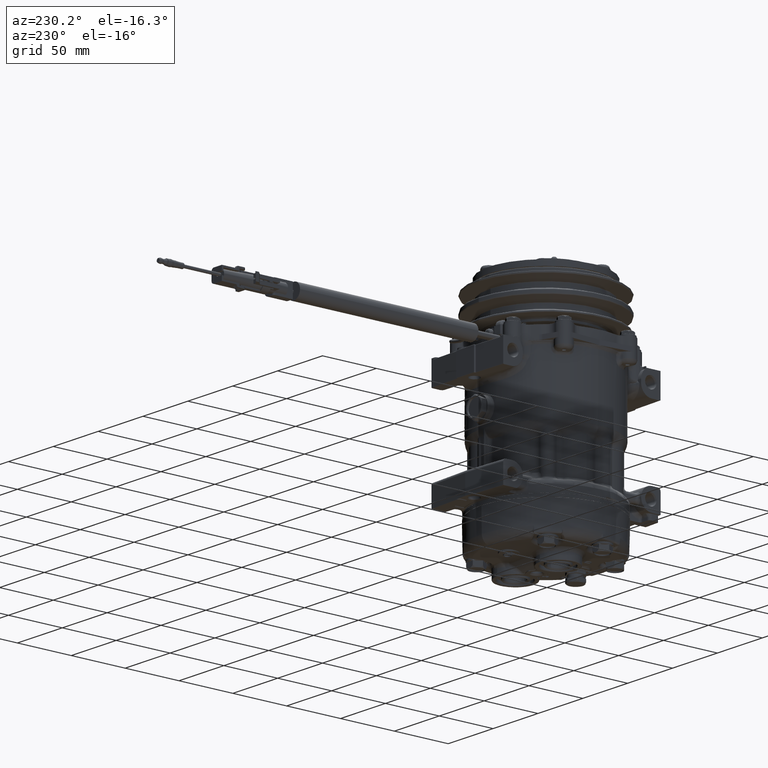
[diagram: clean part render]
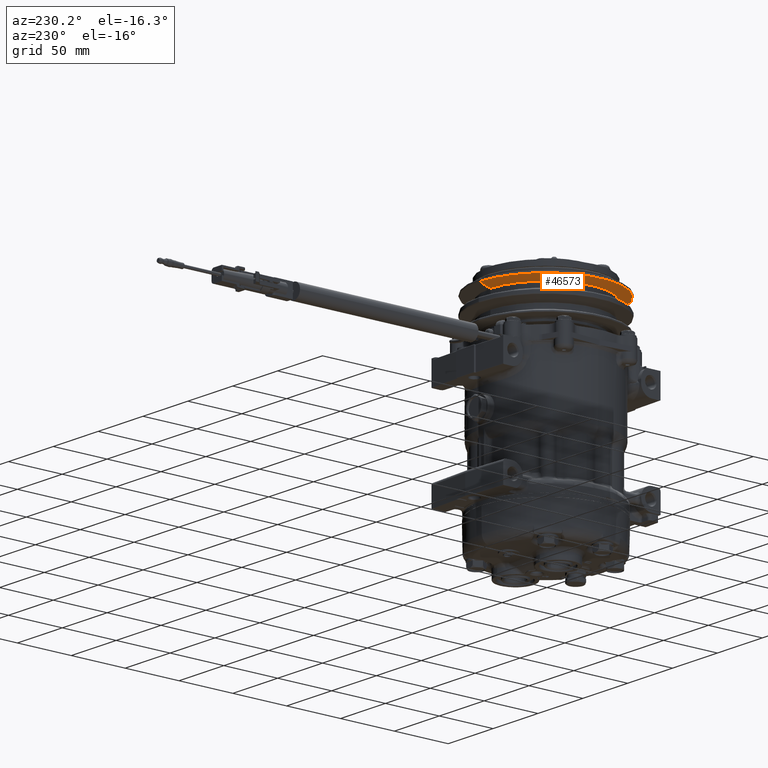
[diagram: same view with one face highlighted and labeled with its STEP entity id]
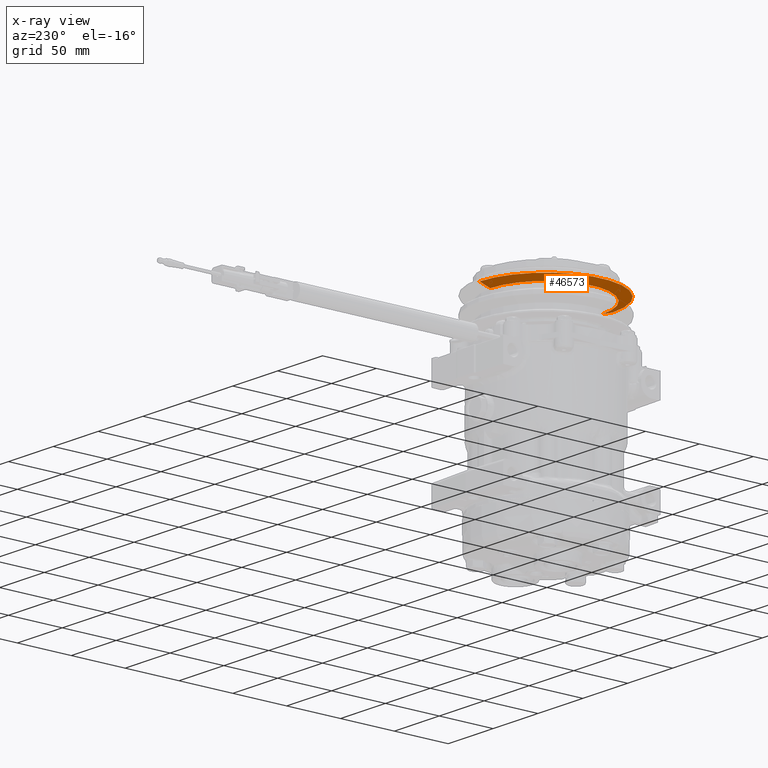
[diagram: x-ray of the same camera — body ghosted, the highlighted face saturated]
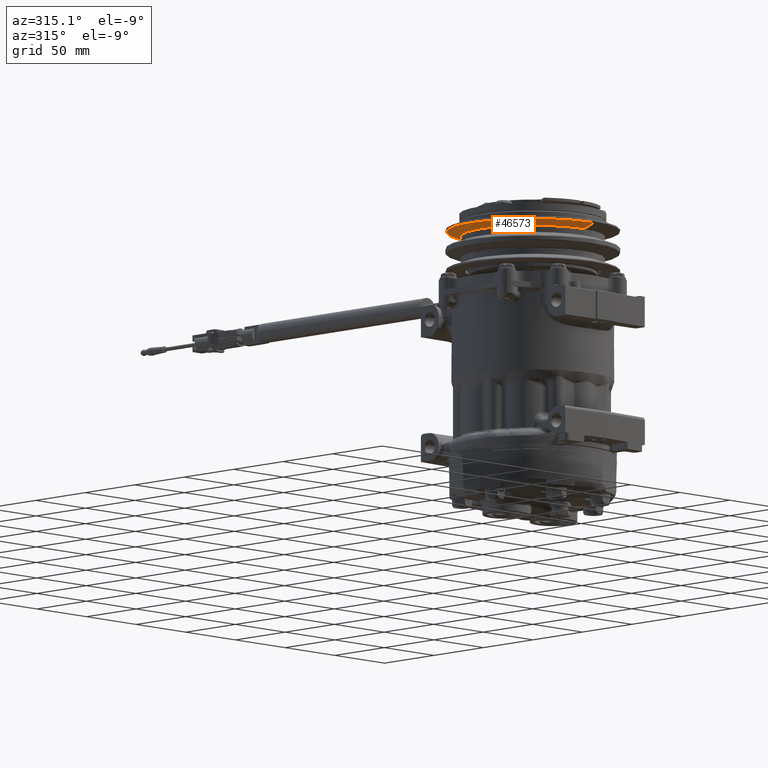
[diagram: same view with one face highlighted and labeled with its STEP entity id]
A machine part, auxiliary view. The second image highlights one B-rep face of the part: STEP entity #46573.
The next image is the same camera in x-ray: the body ghosted, the highlighted face saturated — about 3% of this face is hidden behind the body in this view.
A second angle (auxiliary view) of the same face is appended — the face is thin or edge-on in the first view.
In plain terms, the highlighted conical surface has half-angle 72 deg.
Its self-contained STEP definition (entity closure, byte-faithful):
#34706 = VERTEX_POINT ( 'NONE', #100431 ) ;
#46511 = EDGE_CURVE ( 'NONE', #46513, #34706, #136904, .T. ) ;
#46513 = VERTEX_POINT ( 'NONE', #136899 ) ;
#46535 = VERTEX_POINT ( 'NONE', #136936 ) ;
#46537 = ORIENTED_EDGE ( 'NONE', *, *, #46511, .T. ) ;
#46539 = ORIENTED_EDGE ( 'NONE', *, *, #46541, .F. ) ;
#46541 = EDGE_CURVE ( 'NONE', #46535, #34706, #136935, .T. ) ;
#46543 = VERTEX_POINT ( 'NONE', #136931 ) ;
#46558 = EDGE_CURVE ( 'NONE', #46543, #46513, #136914, .T. ) ;
#46573 = ADVANCED_FACE ( 'NONE', ( #136957 ), #136956, .T. ) ;
#46574 = EDGE_LOOP ( 'NONE', ( #46634, #46630, #46537, #46539 ) ) ;
#46630 = ORIENTED_EDGE ( 'NONE', *, *, #46558, .T. ) ;
#46634 = ORIENTED_EDGE ( 'NONE', *, *, #46636, .F. ) ;
#46636 = EDGE_CURVE ( 'NONE', #46543, #46535, #137182, .T. ) ;
#100431 = CARTESIAN_POINT ( 'NONE',  ( 1.018713123910708100, 61.80890185607308500, 104.7286440270283900 ) ) ;
#136899 = CARTESIAN_POINT ( 'NONE',  ( 1.018713123910700600, -61.80913213267690800, 104.7286440270281100 ) ) ;
#136900 = DIRECTION ( 'NONE',  ( 0.0000000000000000000, -1.000000000000000000, -2.469796047716657800E-015 ) ) ;
#136901 = DIRECTION ( 'NONE',  ( 3.491483361109382100E-015, 2.358328250533916200E-015, -1.000000000000000000 ) ) ;
#136902 = CARTESIAN_POINT ( 'NONE',  ( 1.018713123910719400, -0.0001151383018926921400, 104.7286440270282500 ) ) ;
#136903 = AXIS2_PLACEMENT_3D ( 'NONE', #136902, #136901, #136900 ) ;
#136904 = CIRCLE ( 'NONE', #136903, 61.80901699437496400 ) ;
#136911 = DIRECTION ( 'NONE',  ( -1.195394679430100300E-015, -0.9510565162951519800, 0.3090169943749526100 ) ) ;
#136912 = VECTOR ( 'NONE', #136911, 1000.000000000000000 ) ;
#136913 = CARTESIAN_POINT ( 'NONE',  ( 1.018713123910713200, -51.84560664111442900, 101.4912983509007500 ) ) ;
#136914 = LINE ( 'NONE', #136913, #136912 ) ;
#136931 = CARTESIAN_POINT ( 'NONE',  ( 1.018713123910717700, -51.84560664111441500, 101.4912983509007500 ) ) ;
#136932 = DIRECTION ( 'NONE',  ( -1.078927694160194200E-015, 0.9510565162951504200, 0.3090169943749570500 ) ) ;
#136933 = VECTOR ( 'NONE', #136932, 1000.000000000000000 ) ;
#136934 = CARTESIAN_POINT ( 'NONE',  ( 1.018713123910719400, 51.84537636451064200, 101.4912983509009900 ) ) ;
#136935 = LINE ( 'NONE', #136934, #136933 ) ;
#136936 = CARTESIAN_POINT ( 'NONE',  ( 1.018713123910711700, 51.84537636451062800, 101.4912983509009900 ) ) ;
#136951 = DIRECTION ( 'NONE',  ( 0.0000000000000000000, 1.000000000000000000, 2.409082962663291000E-015 ) ) ;
#136952 = DIRECTION ( 'NONE',  ( -3.491483361109382100E-015, -2.358328250533916200E-015, 1.000000000000000000 ) ) ;
#136953 = CARTESIAN_POINT ( 'NONE',  ( 1.018713123910719400, -0.0001151383018926921400, 101.4912983509008800 ) ) ;
#136954 = AXIS2_PLACEMENT_3D ( 'NONE', #136953, #136952, #136951 ) ;
#136956 = CONICAL_SURFACE ( 'NONE', #136954, 51.84549150281253600, 1.256637061435909500 ) ;
#136957 = FACE_OUTER_BOUND ( 'NONE', #46574, .T. ) ;
#137178 = DIRECTION ( 'NONE',  ( 0.0000000000000000000, -1.000000000000000000, -2.409082962663291800E-015 ) ) ;
#137179 = DIRECTION ( 'NONE',  ( 3.491483361109382100E-015, 2.358328250533916200E-015, -1.000000000000000000 ) ) ;
#137180 = CARTESIAN_POINT ( 'NONE',  ( 1.018713123910719400, -0.0001151383018926921400, 101.4912983509008800 ) ) ;
#137181 = AXIS2_PLACEMENT_3D ( 'NONE', #137180, #137179, #137178 ) ;
#137182 = CIRCLE ( 'NONE', #137181, 51.84549150281252100 ) ;